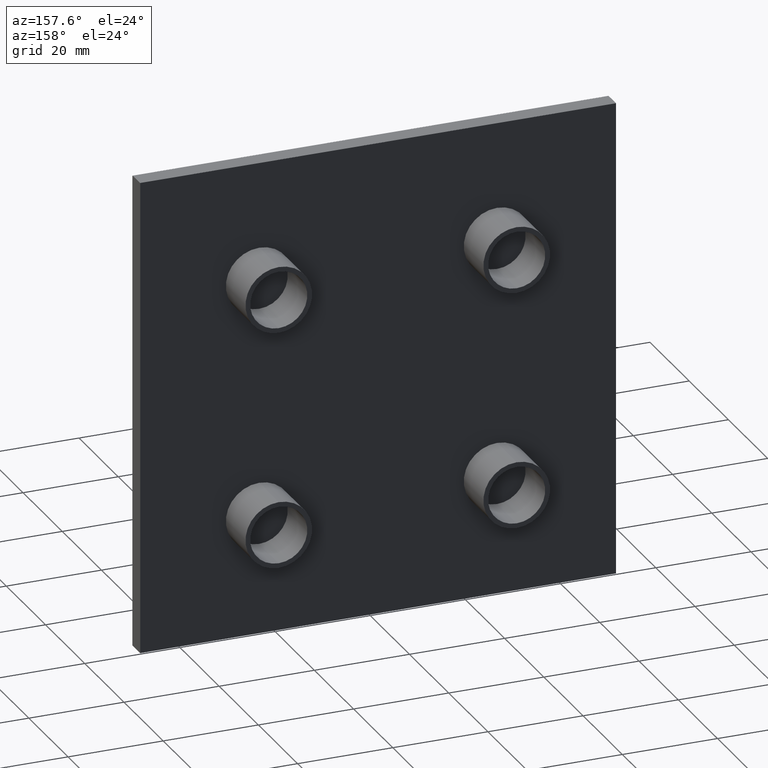
[diagram: clean part render]
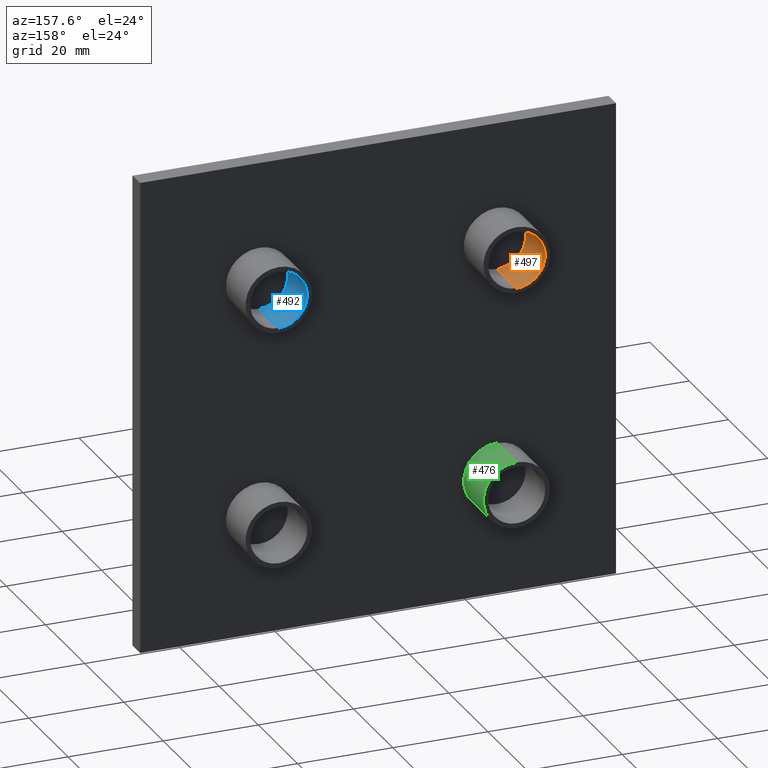
[diagram: same view with three faces highlighted in distinct colors, each labeled with its STEP entity id]
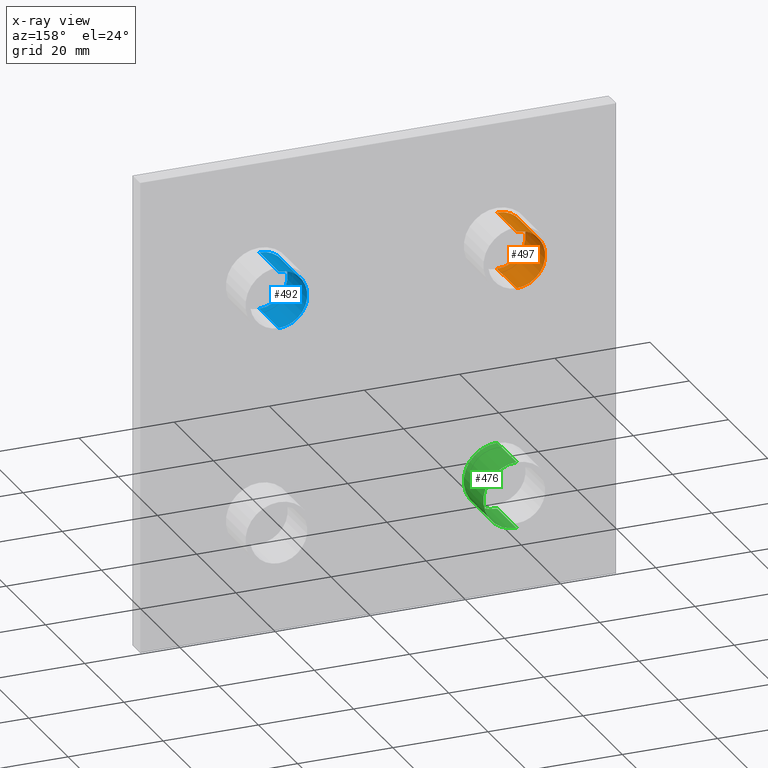
[diagram: x-ray of the same camera — body ghosted, the three highlighted faces saturated]
A machine part, auxiliary view with three faces highlighted in distinct colors.
The next image is the same camera in x-ray (body ghosted, the three faces saturated) — at least one of them is partly hidden behind the body in this view.
Their STEP definitions:

[orange] entity #497 — the highlighted cylindrical surface (edge-blend (fillet) strip) has radius 6 mm, axis along (-0, -1, -0).
#9 = DIRECTION ( 'NONE',  ( -0.0000000000000000000, -1.000000000000000000, -0.0000000000000000000 ) ) ;
#18 = DIRECTION ( 'NONE',  ( 0.0000000000000000000, 0.0000000000000000000, -1.000000000000000000 ) ) ;
#57 = CARTESIAN_POINT ( 'NONE',  ( -25.00000000000001400, 14.00000000000000000, 25.00000000000003600 ) ) ;
#73 = VERTEX_POINT ( 'NONE', #181 ) ;
#81 = VERTEX_POINT ( 'NONE', #165 ) ;
#96 = VERTEX_POINT ( 'NONE', #179 ) ;
#106 = VERTEX_POINT ( 'NONE', #160 ) ;
#160 = CARTESIAN_POINT ( 'NONE',  ( -25.00000000000001400, 14.00000000000000000, 31.00000000000003600 ) ) ;
#165 = CARTESIAN_POINT ( 'NONE',  ( -25.00000000000001400, 4.000000000000000000, 31.00000000000003600 ) ) ;
#179 = CARTESIAN_POINT ( 'NONE',  ( -25.00000000000001400, 14.00000000000000000, 19.00000000000003900 ) ) ;
#181 = CARTESIAN_POINT ( 'NONE',  ( -25.00000000000001400, 4.000000000000000000, 19.00000000000003900 ) ) ;
#339 = ORIENTED_EDGE ( 'NONE', *, *, #886, .T. ) ;
#349 = ORIENTED_EDGE ( 'NONE', *, *, #898, .T. ) ;
#350 = ORIENTED_EDGE ( 'NONE', *, *, #891, .F. ) ;
#351 = ORIENTED_EDGE ( 'NONE', *, *, #905, .T. ) ;
#374 = EDGE_LOOP ( 'NONE', ( #349, #351, #339, #350 ) ) ;
#413 = CARTESIAN_POINT ( 'NONE',  ( -25.00000000000001400, 14.00000000000000000, 25.00000000000003600 ) ) ;
#414 = DIRECTION ( 'NONE',  ( 0.0000000000000000000, 1.000000000000000000, 0.0000000000000000000 ) ) ;
#415 = DIRECTION ( 'NONE',  ( 0.0000000000000000000, 0.0000000000000000000, 1.000000000000000000 ) ) ;
#429 = CARTESIAN_POINT ( 'NONE',  ( -25.00000000000001400, 14.00000000000000000, 31.00000000000003600 ) ) ;
#430 = DIRECTION ( 'NONE',  ( -0.0000000000000000000, -1.000000000000000000, -0.0000000000000000000 ) ) ;
#497 = ADVANCED_FACE ( 'NONE', ( #670 ), #671, .F. ) ;
#547 = AXIS2_PLACEMENT_3D ( 'NONE', #57, #9, #18 ) ;
#576 = AXIS2_PLACEMENT_3D ( 'NONE', #882, #852, #862 ) ;
#584 = AXIS2_PLACEMENT_3D ( 'NONE', #413, #414, #415 ) ;
#670 = FACE_OUTER_BOUND ( 'NONE', #374, .T. ) ;
#671 = CYLINDRICAL_SURFACE ( 'NONE', #547, 5.999999999999998200 ) ;
#730 = CIRCLE ( 'NONE', #576, 5.999999999999998200 ) ;
#735 = LINE ( 'NONE', #858, #737 ) ;
#737 = VECTOR ( 'NONE', #868, 1000.000000000000000 ) ;
#749 = CIRCLE ( 'NONE', #584, 5.999999999999998200 ) ;
#760 = LINE ( 'NONE', #429, #761 ) ;
#761 = VECTOR ( 'NONE', #430, 1000.000000000000000 ) ;
#852 = DIRECTION ( 'NONE',  ( -0.0000000000000000000, -1.000000000000000000, -0.0000000000000000000 ) ) ;
#858 = CARTESIAN_POINT ( 'NONE',  ( -25.00000000000001400, 14.00000000000000000, 19.00000000000003900 ) ) ;
#862 = DIRECTION ( 'NONE',  ( 0.0000000000000000000, 0.0000000000000000000, 1.000000000000000000 ) ) ;
#868 = DIRECTION ( 'NONE',  ( -0.0000000000000000000, -1.000000000000000000, -0.0000000000000000000 ) ) ;
#882 = CARTESIAN_POINT ( 'NONE',  ( -25.00000000000001400, 4.000000000000000000, 25.00000000000003600 ) ) ;
#886 = EDGE_CURVE ( 'NONE', #81, #73, #730, .T. ) ;
#891 = EDGE_CURVE ( 'NONE', #96, #73, #735, .T. ) ;
#898 = EDGE_CURVE ( 'NONE', #96, #106, #749, .T. ) ;
#905 = EDGE_CURVE ( 'NONE', #106, #81, #760, .T. ) ;

[blue] entity #492 — the highlighted cylindrical surface (edge-blend (fillet) strip) has radius 6 mm, axis along (-0, -1, -0).
#13 = DIRECTION ( 'NONE',  ( 0.0000000000000000000, 0.0000000000000000000, -1.000000000000000000 ) ) ;
#45 = DIRECTION ( 'NONE',  ( -0.0000000000000000000, -1.000000000000000000, -0.0000000000000000000 ) ) ;
#61 = CARTESIAN_POINT ( 'NONE',  ( 24.99999999999999300, 14.00000000000000000, 25.00000000000003600 ) ) ;
#86 = VERTEX_POINT ( 'NONE', #193 ) ;
#87 = VERTEX_POINT ( 'NONE', #191 ) ;
#94 = VERTEX_POINT ( 'NONE', #197 ) ;
#95 = VERTEX_POINT ( 'NONE', #156 ) ;
#156 = CARTESIAN_POINT ( 'NONE',  ( 24.99999999999999300, 4.000000000000000000, 31.00000000000003600 ) ) ;
#191 = CARTESIAN_POINT ( 'NONE',  ( 24.99999999999999300, 4.000000000000000000, 19.00000000000003900 ) ) ;
#193 = CARTESIAN_POINT ( 'NONE',  ( 24.99999999999999300, 14.00000000000000000, 19.00000000000003900 ) ) ;
#197 = CARTESIAN_POINT ( 'NONE',  ( 24.99999999999999300, 14.00000000000000000, 31.00000000000003600 ) ) ;
#336 = EDGE_LOOP ( 'NONE', ( #397, #398, #399, #396 ) ) ;
#396 = ORIENTED_EDGE ( 'NONE', *, *, #904, .F. ) ;
#397 = ORIENTED_EDGE ( 'NONE', *, *, #895, .T. ) ;
#398 = ORIENTED_EDGE ( 'NONE', *, *, #892, .T. ) ;
#399 = ORIENTED_EDGE ( 'NONE', *, *, #893, .T. ) ;
#400 = DIRECTION ( 'NONE',  ( -0.0000000000000000000, -1.000000000000000000, -0.0000000000000000000 ) ) ;
#401 = DIRECTION ( 'NONE',  ( 0.0000000000000000000, 0.0000000000000000000, 1.000000000000000000 ) ) ;
#405 = CARTESIAN_POINT ( 'NONE',  ( 24.99999999999999300, 14.00000000000000000, 25.00000000000003600 ) ) ;
#406 = DIRECTION ( 'NONE',  ( 0.0000000000000000000, 1.000000000000000000, 0.0000000000000000000 ) ) ;
#407 = DIRECTION ( 'NONE',  ( 0.0000000000000000000, 0.0000000000000000000, 1.000000000000000000 ) ) ;
#427 = CARTESIAN_POINT ( 'NONE',  ( 24.99999999999999300, 14.00000000000000000, 19.00000000000003900 ) ) ;
#428 = DIRECTION ( 'NONE',  ( -0.0000000000000000000, -1.000000000000000000, -0.0000000000000000000 ) ) ;
#492 = ADVANCED_FACE ( 'NONE', ( #660 ), #661, .F. ) ;
#542 = AXIS2_PLACEMENT_3D ( 'NONE', #61, #45, #13 ) ;
#580 = AXIS2_PLACEMENT_3D ( 'NONE', #839, #400, #401 ) ;
#582 = AXIS2_PLACEMENT_3D ( 'NONE', #405, #406, #407 ) ;
#660 = FACE_OUTER_BOUND ( 'NONE', #336, .T. ) ;
#661 = CYLINDRICAL_SURFACE ( 'NONE', #542, 5.999999999999998200 ) ;
#738 = LINE ( 'NONE', #878, #739 ) ;
#739 = VECTOR ( 'NONE', #875, 1000.000000000000000 ) ;
#742 = CIRCLE ( 'NONE', #580, 5.999999999999998200 ) ;
#745 = CIRCLE ( 'NONE', #582, 5.999999999999998200 ) ;
#757 = LINE ( 'NONE', #427, #759 ) ;
#759 = VECTOR ( 'NONE', #428, 1000.000000000000000 ) ;
#839 = CARTESIAN_POINT ( 'NONE',  ( 24.99999999999999300, 4.000000000000000000, 25.00000000000003600 ) ) ;
#875 = DIRECTION ( 'NONE',  ( -0.0000000000000000000, -1.000000000000000000, -0.0000000000000000000 ) ) ;
#878 = CARTESIAN_POINT ( 'NONE',  ( 24.99999999999999300, 14.00000000000000000, 31.00000000000003600 ) ) ;
#892 = EDGE_CURVE ( 'NONE', #94, #95, #738, .T. ) ;
#893 = EDGE_CURVE ( 'NONE', #95, #87, #742, .T. ) ;
#895 = EDGE_CURVE ( 'NONE', #86, #94, #745, .T. ) ;
#904 = EDGE_CURVE ( 'NONE', #86, #87, #757, .T. ) ;

[green] entity #476 — the highlighted cylindrical surface (edge-blend (fillet) strip) has radius 7 mm, axis along (-0, -1, -0).
#2 = EDGE_CURVE ( 'NONE', #72, #114, #624, .T. ) ;
#3 = EDGE_CURVE ( 'NONE', #97, #80, #626, .T. ) ;
#4 = EDGE_CURVE ( 'NONE', #97, #72, #625, .T. ) ;
#5 = EDGE_CURVE ( 'NONE', #80, #114, #628, .T. ) ;
#72 = VERTEX_POINT ( 'NONE', #200 ) ;
#75 = CARTESIAN_POINT ( 'NONE',  ( -25.00000000000001400, 4.000000000000000000, -25.00000000000000000 ) ) ;
#80 = VERTEX_POINT ( 'NONE', #177 ) ;
#97 = VERTEX_POINT ( 'NONE', #148 ) ;
#114 = VERTEX_POINT ( 'NONE', #157 ) ;
#139 = DIRECTION ( 'NONE',  ( 0.0000000000000000000, 0.0000000000000000000, 1.000000000000000000 ) ) ;
#146 = CARTESIAN_POINT ( 'NONE',  ( -25.00000000000001400, 14.00000000000000000, -25.00000000000000000 ) ) ;
#148 = CARTESIAN_POINT ( 'NONE',  ( -25.00000000000001400, 14.00000000000000000, -18.00000000000000400 ) ) ;
#154 = DIRECTION ( 'NONE',  ( 0.0000000000000000000, 1.000000000000000000, 0.0000000000000000000 ) ) ;
#157 = CARTESIAN_POINT ( 'NONE',  ( -25.00000000000001400, 4.000000000000000000, -32.00000000000000000 ) ) ;
#166 = CARTESIAN_POINT ( 'NONE',  ( -25.00000000000001400, 14.00000000000000000, -32.00000000000000000 ) ) ;
#169 = DIRECTION ( 'NONE',  ( 0.0000000000000000000, 0.0000000000000000000, 1.000000000000000000 ) ) ;
#172 = CARTESIAN_POINT ( 'NONE',  ( -25.00000000000001400, 14.00000000000000000, -25.00000000000000000 ) ) ;
#176 = DIRECTION ( 'NONE',  ( -0.0000000000000000000, -1.000000000000000000, -0.0000000000000000000 ) ) ;
#177 = CARTESIAN_POINT ( 'NONE',  ( -25.00000000000001400, 14.00000000000000000, -32.00000000000000000 ) ) ;
#180 = DIRECTION ( 'NONE',  ( 0.0000000000000000000, 1.000000000000000000, 0.0000000000000000000 ) ) ;
#187 = DIRECTION ( 'NONE',  ( 0.0000000000000000000, 0.0000000000000000000, -1.000000000000000000 ) ) ;
#192 = DIRECTION ( 'NONE',  ( -0.0000000000000000000, -1.000000000000000000, -0.0000000000000000000 ) ) ;
#195 = CARTESIAN_POINT ( 'NONE',  ( -25.00000000000001400, 14.00000000000000000, -18.00000000000000400 ) ) ;
#198 = DIRECTION ( 'NONE',  ( -0.0000000000000000000, -1.000000000000000000, -0.0000000000000000000 ) ) ;
#200 = CARTESIAN_POINT ( 'NONE',  ( -25.00000000000001400, 4.000000000000000000, -18.00000000000000400 ) ) ;
#209 = ORIENTED_EDGE ( 'NONE', *, *, #5, .F. ) ;
#251 = ORIENTED_EDGE ( 'NONE', *, *, #3, .F. ) ;
#252 = ORIENTED_EDGE ( 'NONE', *, *, #4, .T. ) ;
#253 = ORIENTED_EDGE ( 'NONE', *, *, #2, .T. ) ;
#371 = EDGE_LOOP ( 'NONE', ( #251, #252, #253, #209 ) ) ;
#476 = ADVANCED_FACE ( 'NONE', ( #634 ), #635, .T. ) ;
#525 = AXIS2_PLACEMENT_3D ( 'NONE', #75, #154, #139 ) ;
#526 = AXIS2_PLACEMENT_3D ( 'NONE', #146, #180, #169 ) ;
#527 = AXIS2_PLACEMENT_3D ( 'NONE', #172, #198, #187 ) ;
#624 = CIRCLE ( 'NONE', #525, 6.999999999999999100 ) ;
#625 = LINE ( 'NONE', #195, #627 ) ;
#626 = CIRCLE ( 'NONE', #526, 6.999999999999999100 ) ;
#627 = VECTOR ( 'NONE', #176, 1000.000000000000000 ) ;
#628 = LINE ( 'NONE', #166, #629 ) ;
#629 = VECTOR ( 'NONE', #192, 1000.000000000000000 ) ;
#634 = FACE_OUTER_BOUND ( 'NONE', #371, .T. ) ;
#635 = CYLINDRICAL_SURFACE ( 'NONE', #527, 6.999999999999999100 ) ;